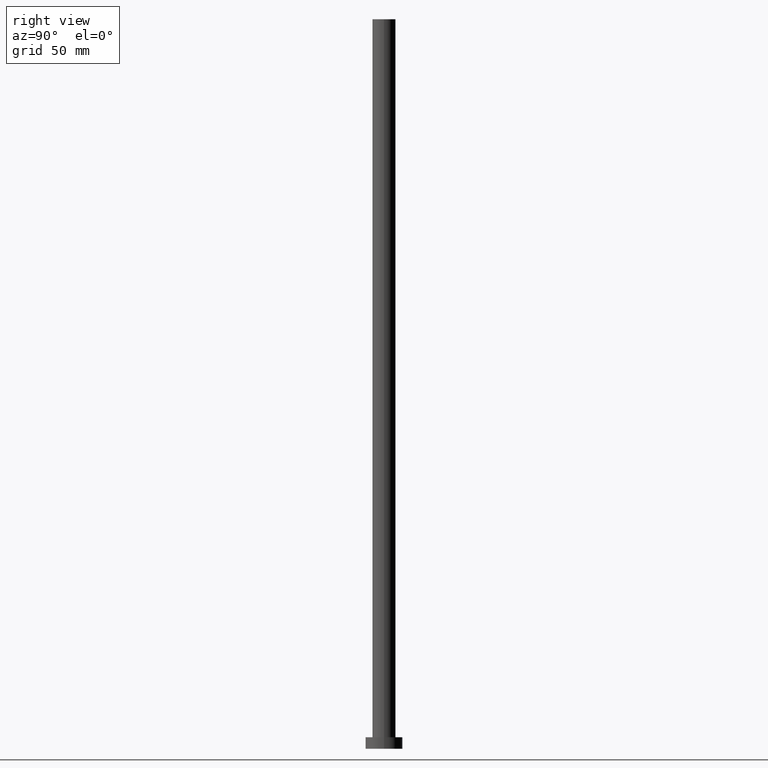
[diagram: clean part render]
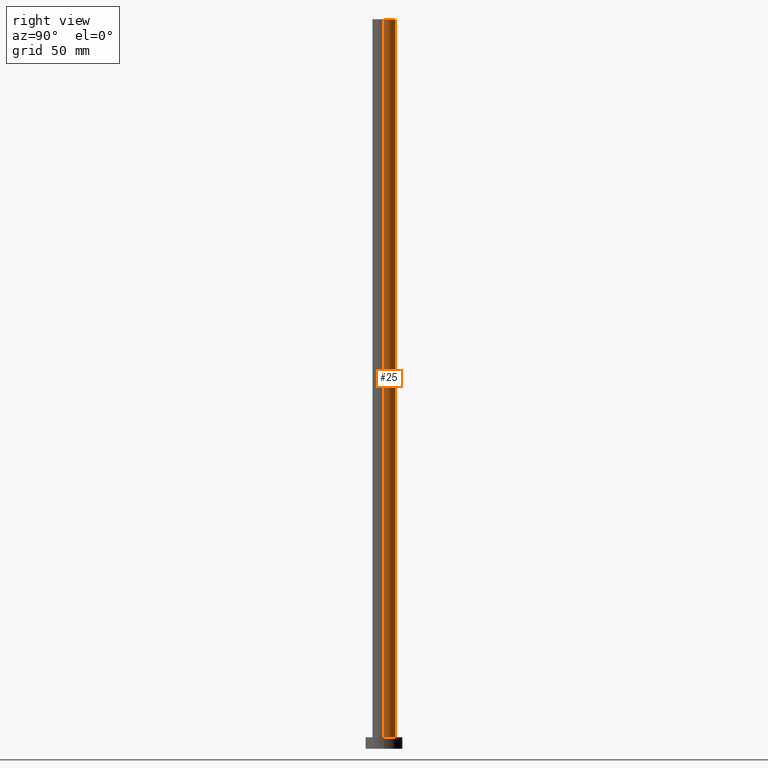
[diagram: same view with one face highlighted and labeled with its STEP entity id]
A machine part, right view. The second image highlights one B-rep face of the part: STEP entity #25.
In plain terms, the highlighted cylindrical surface (edge-blend (fillet) strip) has radius 5 mm, axis along (-0, -0, -1).
Its self-contained STEP definition (entity closure, byte-faithful):
#11 = ORIENTED_EDGE ( 'NONE', *, *, #180, .T. ) ;
#14 = LINE ( 'NONE', #90, #73 ) ;
#22 = EDGE_CURVE ( 'NONE', #215, #153, #176, .T. ) ;
#25 = ADVANCED_FACE ( 'NONE', ( #43 ), #244, .T. ) ;
#28 = DIRECTION ( 'NONE',  ( -0.000000000000000000, -0.000000000000000000, -1.000000000000000000 ) ) ;
#34 = DIRECTION ( 'NONE',  ( -0.000000000000000000, -0.000000000000000000, -1.000000000000000000 ) ) ;
#37 = EDGE_LOOP ( 'NONE', ( #65, #11, #156, #127 ) ) ;
#43 = FACE_OUTER_BOUND ( 'NONE', #37, .T. ) ;
#49 = AXIS2_PLACEMENT_3D ( 'NONE', #149, #229, #50 ) ;
#50 = DIRECTION ( 'NONE',  ( 1.000000000000000000, 0.000000000000000000, 0.000000000000000000 ) ) ;
#64 = VERTEX_POINT ( 'NONE', #126 ) ;
#65 = ORIENTED_EDGE ( 'NONE', *, *, #249, .F. ) ;
#73 = VECTOR ( 'NONE', #34, 1000.000000000000000 ) ;
#75 = EDGE_CURVE ( 'NONE', #157, #153, #102, .T. ) ;
#90 = CARTESIAN_POINT ( 'NONE',  ( 5.000000000000000888, 6.123233995736767268E-16, 315.0000000000000000 ) ) ;
#93 = CARTESIAN_POINT ( 'NONE',  ( -5.000000000000000888, 0.000000000000000000, 315.0000000000000000 ) ) ;
#102 = CIRCLE ( 'NONE', #173, 5.000000000000000888 ) ;
#105 = CARTESIAN_POINT ( 'NONE',  ( 0.000000000000000000, 0.000000000000000000, 5.000000000000000000 ) ) ;
#107 = DIRECTION ( 'NONE',  ( -0.000000000000000000, -0.000000000000000000, -1.000000000000000000 ) ) ;
#108 = DIRECTION ( 'NONE',  ( -1.000000000000000000, 0.000000000000000000, 0.000000000000000000 ) ) ;
#126 = CARTESIAN_POINT ( 'NONE',  ( 5.000000000000000888, 6.123233995736767268E-16, 315.0000000000000000 ) ) ;
#127 = ORIENTED_EDGE ( 'NONE', *, *, #22, .F. ) ;
#149 = CARTESIAN_POINT ( 'NONE',  ( 0.000000000000000000, 0.000000000000000000, 315.0000000000000000 ) ) ;
#153 = VERTEX_POINT ( 'NONE', #251 ) ;
#156 = ORIENTED_EDGE ( 'NONE', *, *, #75, .T. ) ;
#157 = VERTEX_POINT ( 'NONE', #250 ) ;
#173 = AXIS2_PLACEMENT_3D ( 'NONE', #105, #202, #183 ) ;
#176 = LINE ( 'NONE', #221, #227 ) ;
#180 = EDGE_CURVE ( 'NONE', #64, #157, #14, .T. ) ;
#181 = AXIS2_PLACEMENT_3D ( 'NONE', #201, #107, #108 ) ;
#183 = DIRECTION ( 'NONE',  ( 1.000000000000000000, 0.000000000000000000, 0.000000000000000000 ) ) ;
#201 = CARTESIAN_POINT ( 'NONE',  ( 0.000000000000000000, 0.000000000000000000, 315.0000000000000000 ) ) ;
#202 = DIRECTION ( 'NONE',  ( 0.000000000000000000, 0.000000000000000000, 1.000000000000000000 ) ) ;
#215 = VERTEX_POINT ( 'NONE', #93 ) ;
#219 = CIRCLE ( 'NONE', #49, 5.000000000000000888 ) ;
#221 = CARTESIAN_POINT ( 'NONE',  ( -5.000000000000000888, 0.000000000000000000, 315.0000000000000000 ) ) ;
#227 = VECTOR ( 'NONE', #28, 1000.000000000000000 ) ;
#229 = DIRECTION ( 'NONE',  ( 0.000000000000000000, 0.000000000000000000, 1.000000000000000000 ) ) ;
#244 = CYLINDRICAL_SURFACE ( 'NONE', #181, 5.000000000000000888 ) ;
#249 = EDGE_CURVE ( 'NONE', #64, #215, #219, .T. ) ;
#250 = CARTESIAN_POINT ( 'NONE',  ( 5.000000000000000888, 6.123233995736767268E-16, 5.000000000000000000 ) ) ;
#251 = CARTESIAN_POINT ( 'NONE',  ( -5.000000000000000888, 0.000000000000000000, 5.000000000000000000 ) ) ;